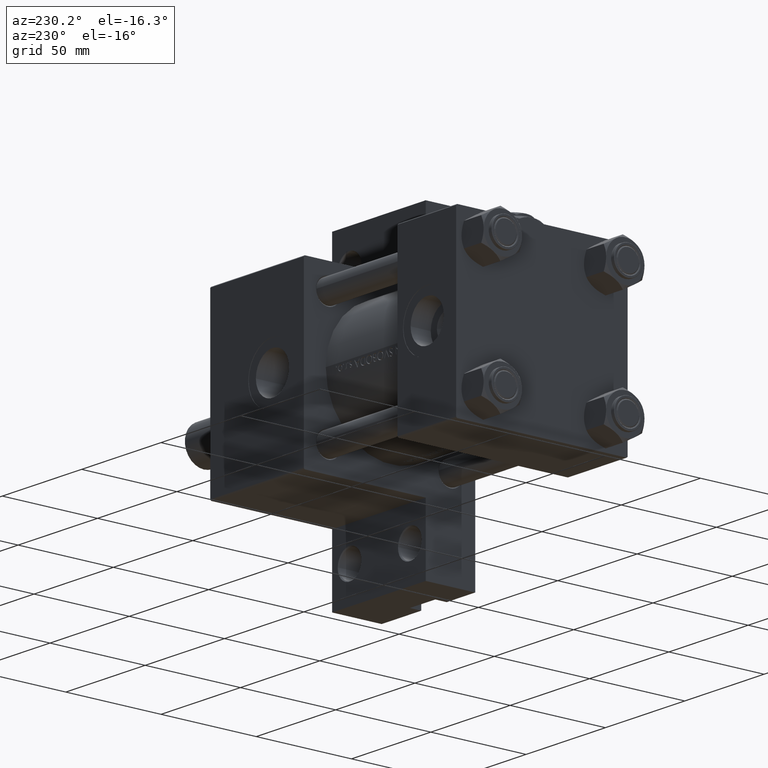
[diagram: clean part render]
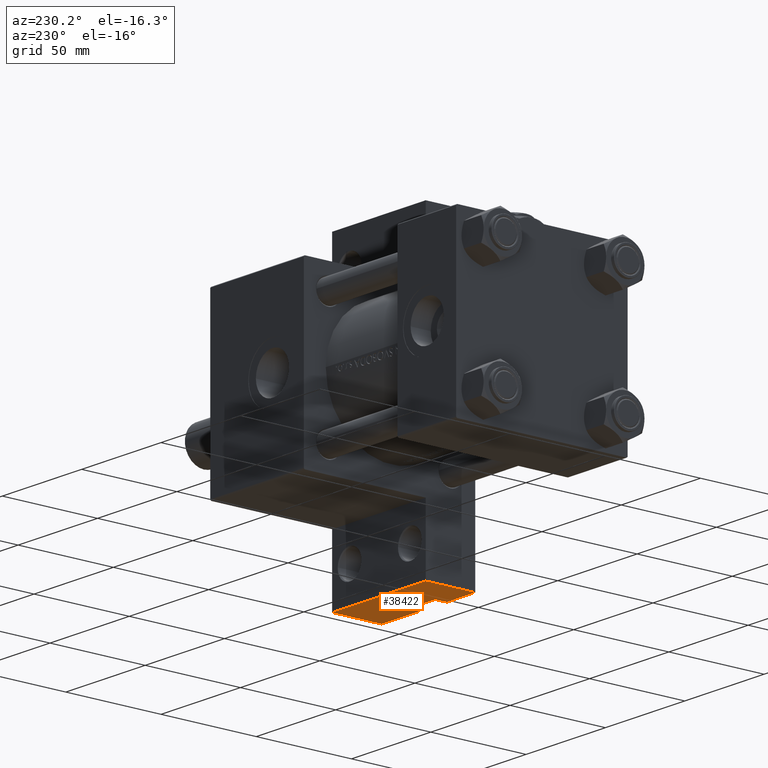
[diagram: same view with one face highlighted and labeled with its STEP entity id]
A machine part, auxiliary view. The second image highlights one B-rep face of the part: STEP entity #38422.
In plain terms, the highlighted planar face has unit normal (-0, 0, -1).
Its self-contained STEP definition (entity closure, byte-faithful):
#722 = CARTESIAN_POINT ( 'NONE',  ( 96.00000000000000000, 79.99999999999998579, -19.00000000000000000 ) ) ;
#2910 = VERTEX_POINT ( 'NONE', #46149 ) ;
#2964 = CARTESIAN_POINT ( 'NONE',  ( 155.0000000000000000, 80.00000000000000000, -19.00000000000000000 ) ) ;
#3117 = ORIENTED_EDGE ( 'NONE', *, *, #45062, .T. ) ;
#3302 = VECTOR ( 'NONE', #22698, 1000.000000000000000 ) ;
#3554 = VERTEX_POINT ( 'NONE', #34773 ) ;
#3784 = LINE ( 'NONE', #722, #37158 ) ;
#4406 = VERTEX_POINT ( 'NONE', #13014 ) ;
#5042 = VERTEX_POINT ( 'NONE', #12570 ) ;
#5785 = VECTOR ( 'NONE', #26783, 1000.000000000000000 ) ;
#6078 = VECTOR ( 'NONE', #22548, 1000.000000000000000 ) ;
#6203 = DIRECTION ( 'NONE',  ( -1.000000000000000000, -2.352167425053297897E-16, 0.000000000000000000 ) ) ;
#6283 = VERTEX_POINT ( 'NONE', #47060 ) ;
#6333 = CARTESIAN_POINT ( 'NONE',  ( 129.9999999999999716, 79.99999999999998579, -39.00000000000000000 ) ) ;
#7976 = LINE ( 'NONE', #46793, #35521 ) ;
#8040 = ORIENTED_EDGE ( 'NONE', *, *, #44642, .F. ) ;
#8226 = LINE ( 'NONE', #43735, #25542 ) ;
#8781 = AXIS2_PLACEMENT_3D ( 'NONE', #21416, #12799, #6203 ) ;
#9213 = DIRECTION ( 'NONE',  ( 1.000000000000000000, 0.000000000000000000, 0.000000000000000000 ) ) ;
#11548 = LINE ( 'NONE', #2964, #5785 ) ;
#11944 = DIRECTION ( 'NONE',  ( -0.000000000000000000, -0.000000000000000000, -1.000000000000000000 ) ) ;
#12023 = DIRECTION ( 'NONE',  ( 1.000000000000000000, 2.352167425053297897E-16, 0.000000000000000000 ) ) ;
#12570 = CARTESIAN_POINT ( 'NONE',  ( 96.00000000000000000, 79.99999999999998579, -19.00000000000000000 ) ) ;
#12799 = DIRECTION ( 'NONE',  ( -2.352167425053297897E-16, 1.000000000000000000, 0.000000000000000000 ) ) ;
#13014 = CARTESIAN_POINT ( 'NONE',  ( 113.9999999999999858, 79.99999999999998579, -45.00000000000000000 ) ) ;
#13251 = CARTESIAN_POINT ( 'NONE',  ( 96.00000000000000000, 79.99999999999998579, -45.00000000000000000 ) ) ;
#14173 = EDGE_CURVE ( 'NONE', #5042, #27257, #27033, .T. ) ;
#14671 = ORIENTED_EDGE ( 'NONE', *, *, #16122, .F. ) ;
#14867 = DIRECTION ( 'NONE',  ( 0.000000000000000000, 0.000000000000000000, -1.000000000000000000 ) ) ;
#15063 = LINE ( 'NONE', #22441, #3302 ) ;
#16122 = EDGE_CURVE ( 'NONE', #23550, #31527, #7976, .T. ) ;
#17391 = ORIENTED_EDGE ( 'NONE', *, *, #25522, .F. ) ;
#18684 = VECTOR ( 'NONE', #11944, 1000.000000000000000 ) ;
#20882 = CARTESIAN_POINT ( 'NONE',  ( 129.9999999999999716, 79.99999999999998579, -45.00000000000000000 ) ) ;
#21416 = CARTESIAN_POINT ( 'NONE',  ( 96.00000000000000000, 79.99999999999998579, -19.00000000000000000 ) ) ;
#22441 = CARTESIAN_POINT ( 'NONE',  ( 96.00000000000000000, 79.99999999999998579, -45.00000000000000000 ) ) ;
#22548 = DIRECTION ( 'NONE',  ( -0.000000000000000000, -0.000000000000000000, -1.000000000000000000 ) ) ;
#22698 = DIRECTION ( 'NONE',  ( 1.000000000000000000, 2.352167425053297897E-16, 0.000000000000000000 ) ) ;
#23550 = VERTEX_POINT ( 'NONE', #20882 ) ;
#24462 = EDGE_CURVE ( 'NONE', #6283, #2910, #8226, .T. ) ;
#25522 = EDGE_CURVE ( 'NONE', #2910, #23550, #33444, .T. ) ;
#25542 = VECTOR ( 'NONE', #9213, 1000.000000000000000 ) ;
#26783 = DIRECTION ( 'NONE',  ( 0.000000000000000000, 0.000000000000000000, -1.000000000000000000 ) ) ;
#27033 = LINE ( 'NONE', #27287, #34584 ) ;
#27257 = VERTEX_POINT ( 'NONE', #13251 ) ;
#27287 = CARTESIAN_POINT ( 'NONE',  ( 96.00000000000000000, 79.99999999999998579, -19.00000000000000000 ) ) ;
#28174 = CARTESIAN_POINT ( 'NONE',  ( 113.9999999999999858, 79.99999999999998579, -39.00000000000000000 ) ) ;
#28665 = ORIENTED_EDGE ( 'NONE', *, *, #24462, .F. ) ;
#29289 = FACE_OUTER_BOUND ( 'NONE', #40860, .T. ) ;
#29730 = ORIENTED_EDGE ( 'NONE', *, *, #14173, .F. ) ;
#31527 = VERTEX_POINT ( 'NONE', #49290 ) ;
#33444 = LINE ( 'NONE', #6333, #6078 ) ;
#34584 = VECTOR ( 'NONE', #14867, 1000.000000000000000 ) ;
#34773 = CARTESIAN_POINT ( 'NONE',  ( 155.0000000000000000, 80.00000000000000000, -19.00000000000000000 ) ) ;
#34835 = ORIENTED_EDGE ( 'NONE', *, *, #39337, .T. ) ;
#35521 = VECTOR ( 'NONE', #12023, 1000.000000000000000 ) ;
#37158 = VECTOR ( 'NONE', #46898, 1000.000000000000000 ) ;
#38422 = ADVANCED_FACE ( 'NONE', ( #29289 ), #40944, .T. ) ;
#39337 = EDGE_CURVE ( 'NONE', #5042, #3554, #3784, .T. ) ;
#40860 = EDGE_LOOP ( 'NONE', ( #17391, #28665, #3117, #8040, #29730, #34835, #48839, #14671 ) ) ;
#40944 = PLANE ( 'NONE',  #8781 ) ;
#43667 = LINE ( 'NONE', #28174, #18684 ) ;
#43735 = CARTESIAN_POINT ( 'NONE',  ( 113.9999999999999858, 79.99999999999998579, -39.00000000000000000 ) ) ;
#44642 = EDGE_CURVE ( 'NONE', #27257, #4406, #15063, .T. ) ;
#45062 = EDGE_CURVE ( 'NONE', #6283, #4406, #43667, .T. ) ;
#46149 = CARTESIAN_POINT ( 'NONE',  ( 129.9999999999999716, 79.99999999999998579, -39.00000000000000000 ) ) ;
#46793 = CARTESIAN_POINT ( 'NONE',  ( 96.00000000000000000, 79.99999999999998579, -45.00000000000000000 ) ) ;
#46898 = DIRECTION ( 'NONE',  ( 1.000000000000000000, 2.352167425053297897E-16, 0.000000000000000000 ) ) ;
#47060 = CARTESIAN_POINT ( 'NONE',  ( 113.9999999999999858, 79.99999999999998579, -39.00000000000000000 ) ) ;
#47435 = EDGE_CURVE ( 'NONE', #3554, #31527, #11548, .T. ) ;
#48839 = ORIENTED_EDGE ( 'NONE', *, *, #47435, .T. ) ;
#49290 = CARTESIAN_POINT ( 'NONE',  ( 155.0000000000000000, 80.00000000000000000, -45.00000000000000000 ) ) ;